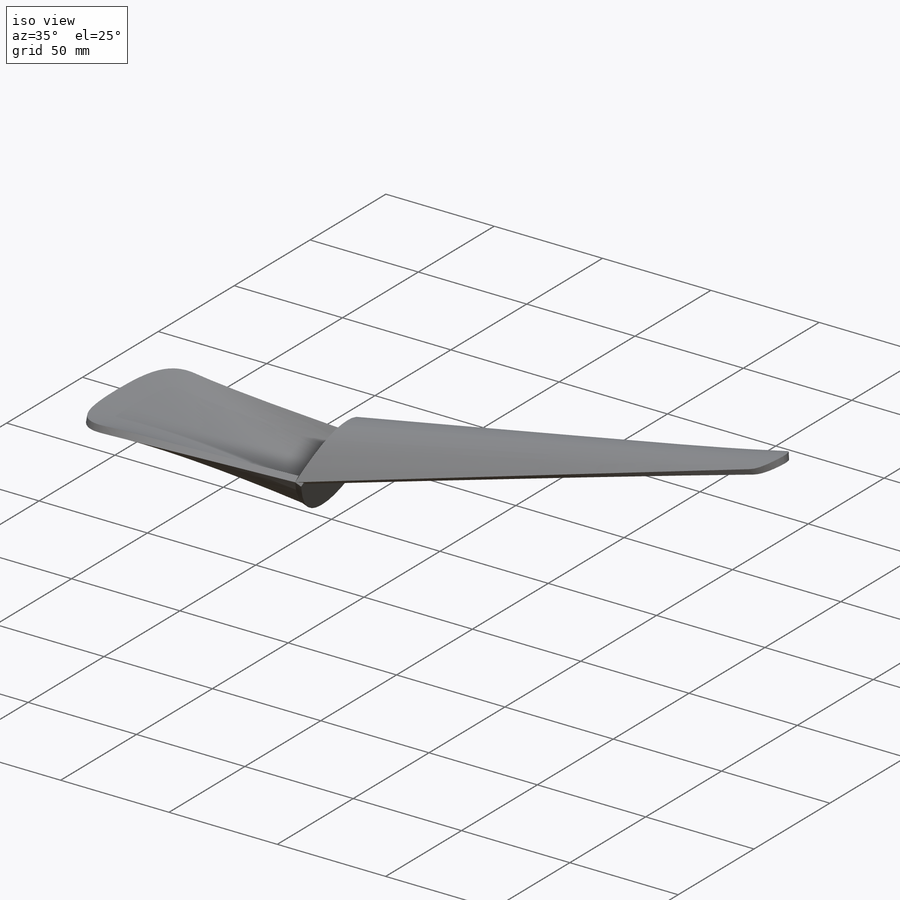
[diagram: iso view]
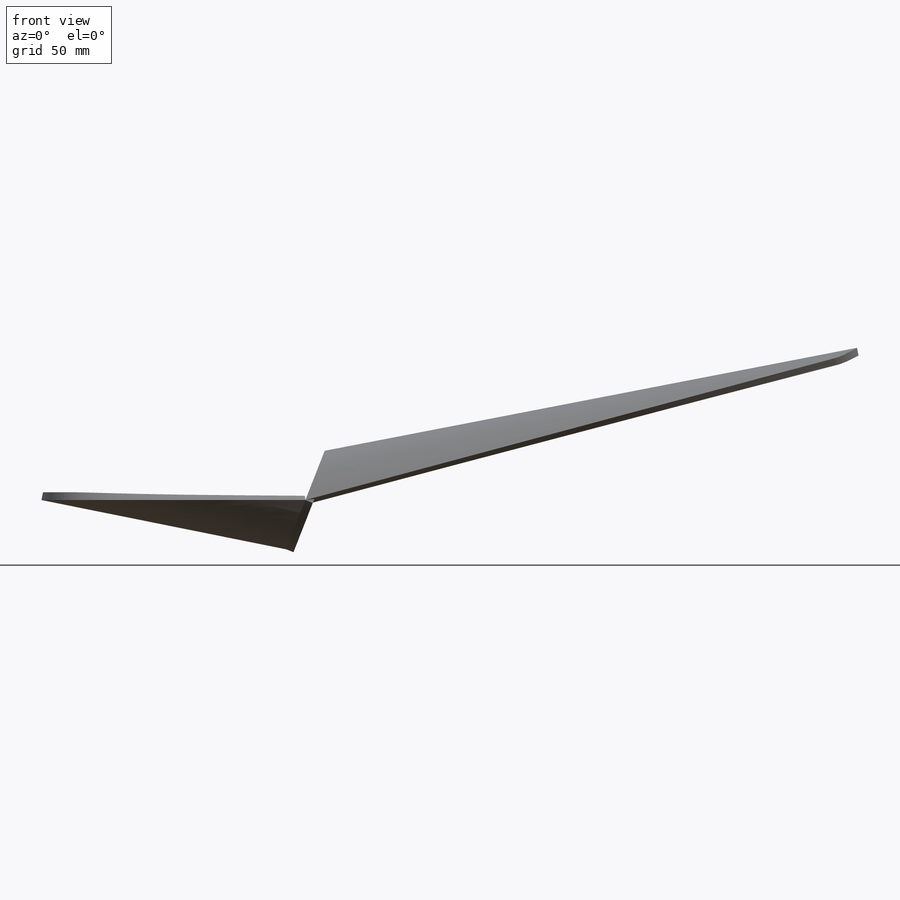
[diagram: front view]
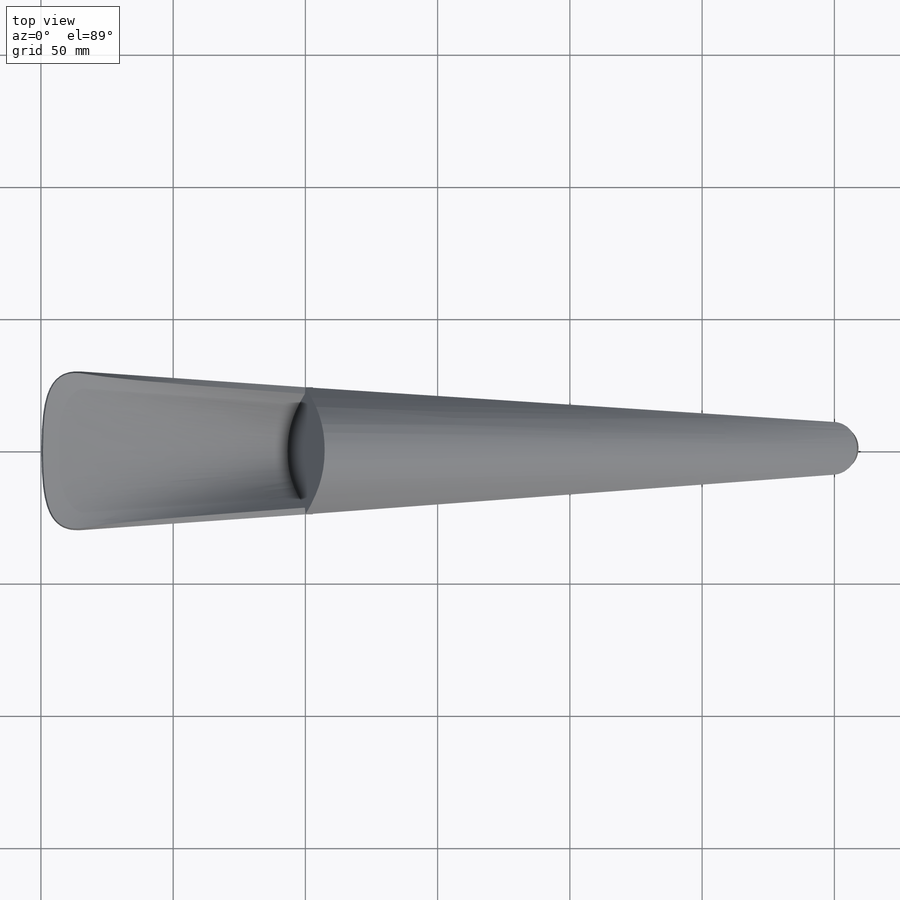
[diagram: top view]
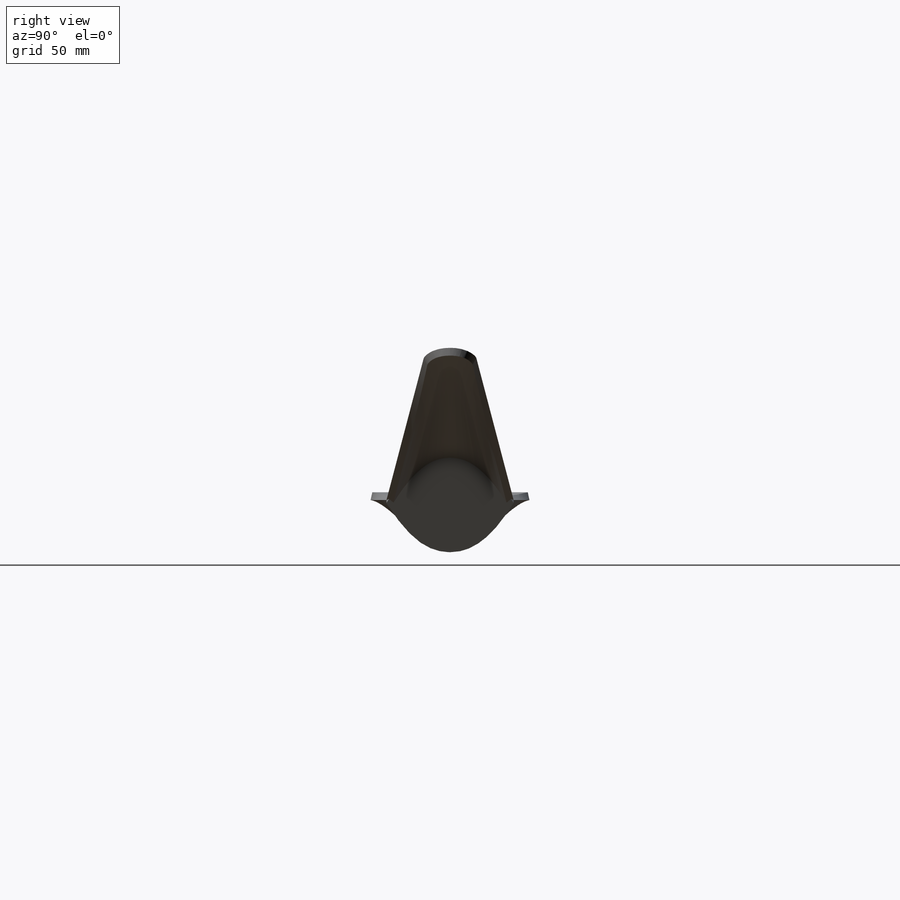
[diagram: right view]
SOLIDWORKS PART (.sldprt)
format: sldprt  version: not decoded by parser v0  size: 446,976 bytes
history: native  units: mm
features: sketch x15, plane x9, mirror x2, surface_op x2, material x1 (+9 scaffold rows collapsed)
feature tree (38):
  scaffold x9  (default folders/planes/origin — collapsed)
  material  "Material <nicht festgelegt>"
  plane  "Ebene vorne"
  plane  "Ebene oben"
  plane  "Ebene rechts"
  sketch  "Skizze2"  dims[c1.D2=~60.81614mm c1.D3=~37.13726mm c1.D1=85.0mm c2.D2=200.0mm c2.D3=10.0mm c2.D4=30.0mm c2.D5=15.0mm c2.D6=~99.790447mm c2.D7=~9.348484mm]
  sketch  "Skizze3"  dims[c1.D1=~208.828159mm c2.D1=15.0deg]
  sketch  "low_shovel"  dims[c1.D1=~21.061994mm c2.D1=100.0deg c2.D2=20.0mm]
  sketch  "Skizze6"  dims[D1=20.0mm]
  plane  "Ebene1"
  sketch  "Skizze7"  dims[c1.D1=~56.857584mm c1.D2=55.0mm c1.D3=22.0mm c2.D1=~28.546905mm c3.D1=60.0deg]
  sketch  "Skizze8"  dims[c1.D1=22.0mm c1.D2=~47.937254mm c1.D3=55.0mm c2.D2=60.0deg]
  plane  "Ebene2"  Offset=85mm
  sketch  "Skizze9"
  sketch  "Skizze10"
  plane  "Ebene3"
  sketch  "Skizze11"
  plane  "Ebene5"
  sketch  "Skizze12"  dims[c1.D1=30.0mm c2.D1=12.5deg]
  sketch  "Skizze13"
  sketch  "Skizze14"
  plane  "Ebene6"
  sketch  "Skizze15"
  mirror  "Spiegeln2"
  plane  "Ebene7"
  sketch  "Skizze18"
  sketch  "Skizze19"
  surface_op  "Oberfläche-Linear austragen2"
  mirror  "Oberfläche-Trimmen5"
  surface_op  "Oberfläche-Zusammenfügen6"
decode coverage: 7 of 19 modeling features carry decoded parameters
note: ~ marks probable driven/reference dimensions
note: suppression state not decoded; provenance and decode notes live in map.json
